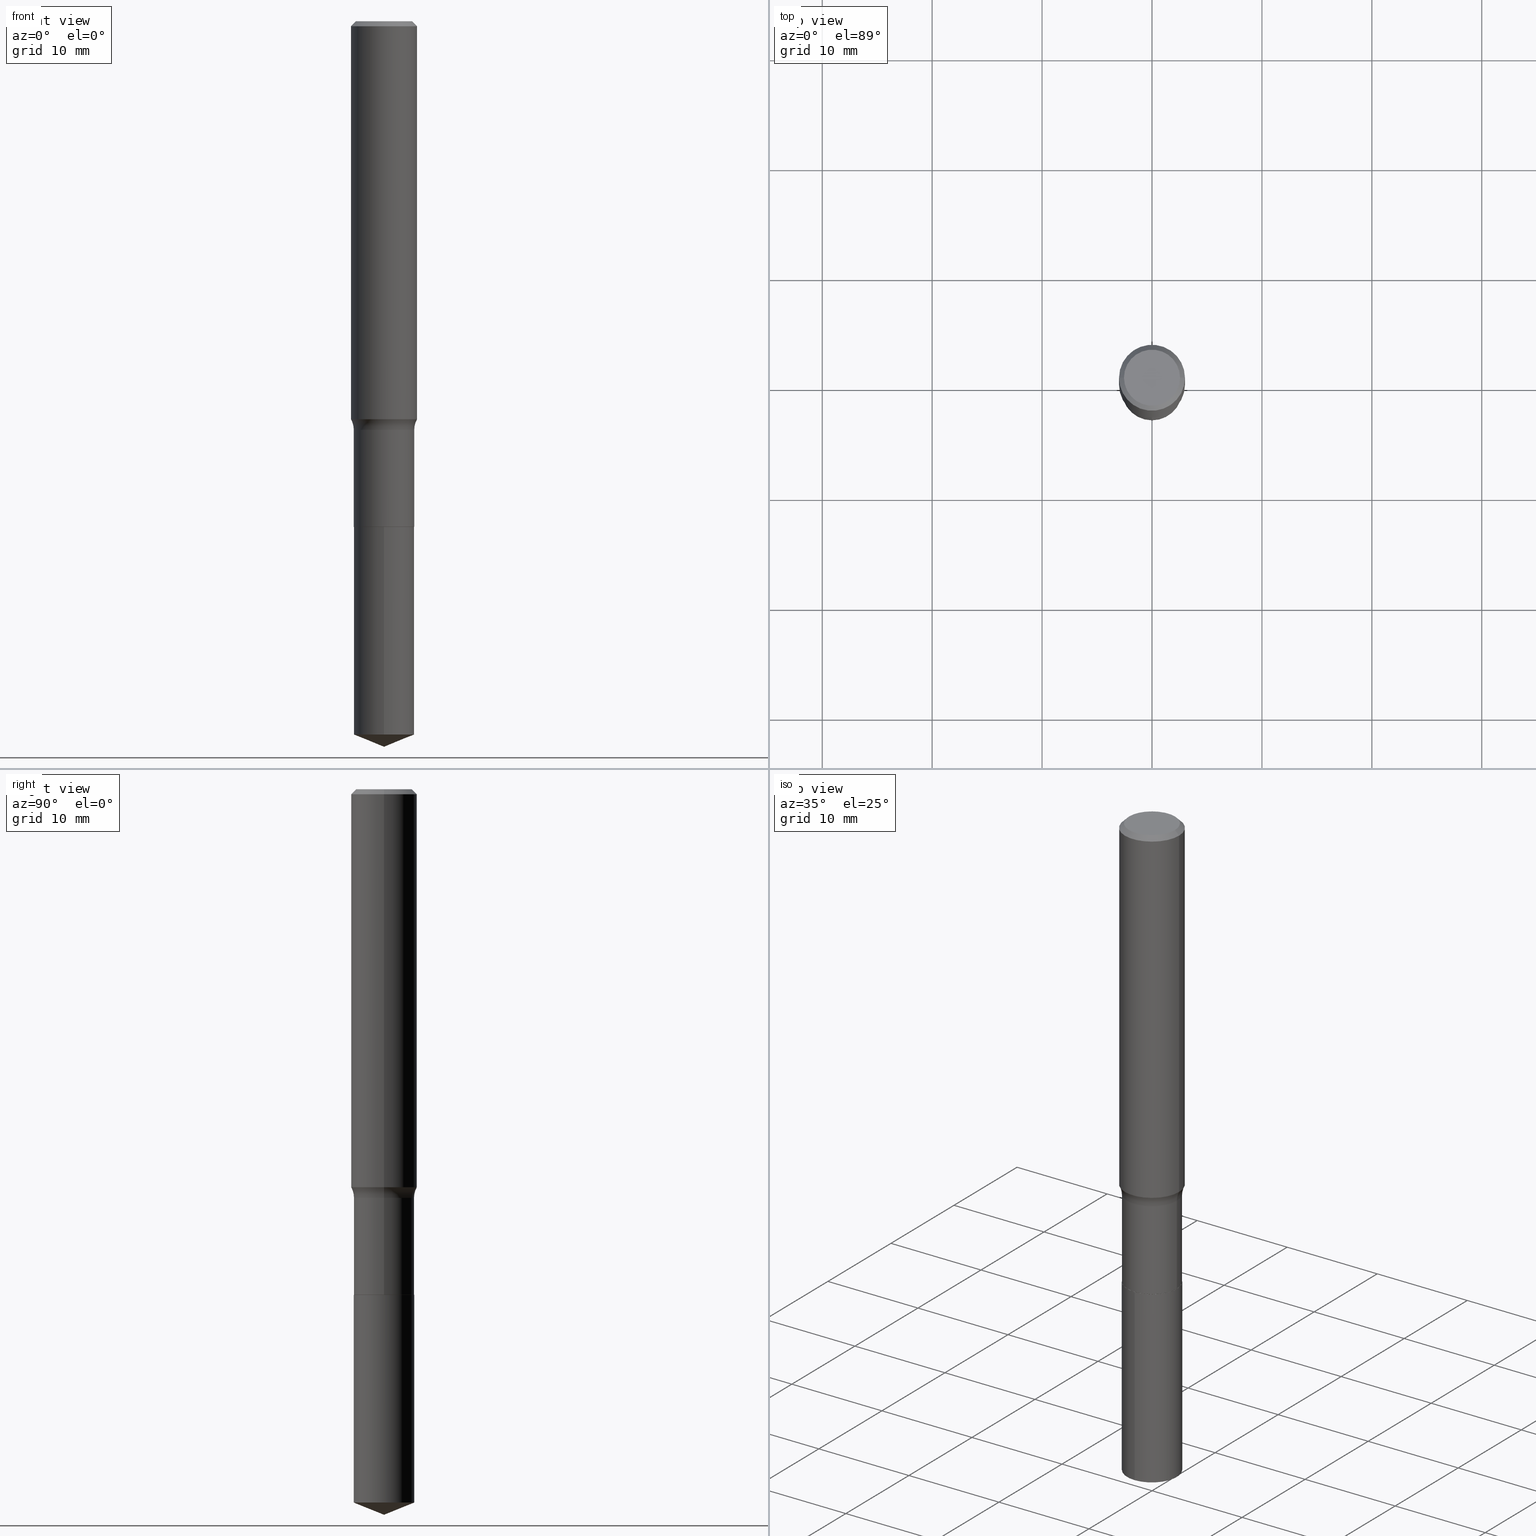
[diagram: canonical four-view strip — front | top / right | iso, engineering-drawing reading convention]
A machine part, canonical four-view strip (front | top / right | iso — engineering-drawing reading convention). The complete STEP part file that produces these views, byte-faithful:
ISO-10303-21;
HEADER;
FILE_DESCRIPTION (( 'STEP AP203' ),
    '1' );
FILE_NAME ('69145.STEP',
    '2024-04-19T17:17:11',
    ( '' ),
    ( '' ),
    'SwSTEP 2.0',
    'SolidWorks 2023',
    '' );
FILE_SCHEMA (( 'CONFIG_CONTROL_DESIGN' ));
ENDSEC;

DATA;
#1 = DIRECTION ( 'NONE',  ( 2.431437355357483089E-29, -3.511575175048929728E-15, -1.000000000000000000 ) ) ;
#2 = CARTESIAN_POINT ( 'NONE',  ( 0.000000000000000000, 0.000000000000000000, 0.000000000000000000 ) ) ;
#3 = ORIENTED_EDGE ( 'NONE', *, *, #57, .F. ) ;
#4 = AXIS2_PLACEMENT_3D ( 'NONE', #154, #72, #447 ) ;
#5 = APPROVAL_PERSON_ORGANIZATION ( #402, #142, #98 ) ;
#6 = DIRECTION ( 'NONE',  ( 1.000000000000000000, -6.982962677686266711E-15, 0.000000000000000000 ) ) ;
#7 = CYLINDRICAL_SURFACE ( 'NONE', #171, 0.1082499999999999851 ) ;
#8 = CARTESIAN_POINT ( 'NONE',  ( 4.427521273598189436E-29, -6.321326963975514491E-15, -1.810499999999999998 ) ) ;
#9 = CC_DESIGN_PERSON_AND_ORGANIZATION_ASSIGNMENT ( #37, #439, ( #395 ) ) ;
#10 = SHAPE_DEFINITION_REPRESENTATION ( #202, #274 ) ;
#11 = DIRECTION ( 'NONE',  ( 1.000000000000000000, -6.982962677686266711E-15, 4.876176775795935232E-29 ) ) ;
#12 = VERTEX_POINT ( 'NONE', #375 ) ;
#13 = COORDINATED_UNIVERSAL_TIME_OFFSET ( 5, 0, .BEHIND. ) ;
#14 = AXIS2_PLACEMENT_3D ( 'NONE', #367, #265, #149 ) ;
#15 = PLANE ( 'NONE',  #194 ) ;
#16 = CYLINDRICAL_SURFACE ( 'NONE', #237, 0.1082499999999999851 ) ;
#17 = AXIS2_PLACEMENT_3D ( 'NONE', #259, #224, #380 ) ;
#18 = CC_DESIGN_SECURITY_CLASSIFICATION ( #433, ( #103 ) ) ;
#19 = ORIENTED_EDGE ( 'NONE', *, *, #147, .T. ) ;
#20 = EDGE_LOOP ( 'NONE', ( #387, #95, #321, #51 ) ) ;
#21 = ORIENTED_EDGE ( 'NONE', *, *, #178, .T. ) ;
#22 = VECTOR ( 'NONE', #100, 39.37007874015748143 ) ;
#23 = CARTESIAN_POINT ( 'NONE',  ( 0.000000000000000000, 0.000000000000000000, 0.000000000000000000 ) ) ;
#24 = ORIENTED_EDGE ( 'NONE', *, *, #302, .T. ) ;
#25 = PRODUCT_DEFINITION ( 'UNKNOWN', '', #103, #424 ) ;
#26 = DATE_AND_TIME ( #248, #393 ) ;
#27 = ORIENTED_EDGE ( 'NONE', *, *, #53, .F. ) ;
#28 = MANIFOLD_SOLID_BREP ( 'Body-Move/Copy2[1]', #262 ) ;
#29 = COORDINATED_UNIVERSAL_TIME_OFFSET ( 5, 0, .BEHIND. ) ;
#30 = DIRECTION ( 'NONE',  ( -2.445468806185136597E-29, 3.491481338843145583E-15, 1.000000000000000000 ) ) ;
#31 = DIRECTION ( 'NONE',  ( 2.445468806185136597E-29, -3.491481338843145583E-15, -1.000000000000000000 ) ) ;
#32 = CARTESIAN_POINT ( 'NONE',  ( -0.1077499999999999986, -5.557462906863427956E-15, -1.810999999999999943 ) ) ;
#33 = AXIS2_PLACEMENT_3D ( 'NONE', #379, #261, #305 ) ;
#34 = AXIS2_PLACEMENT_3D ( 'NONE', #413, #68, #112 ) ;
#35 = VERTEX_POINT ( 'NONE', #446 ) ;
#36 = DIRECTION ( 'NONE',  ( -2.431437355357483089E-29, 3.511575175048930123E-15, 1.000000000000000000 ) ) ;
#37 = PERSON_AND_ORGANIZATION ( #376, #427 ) ;
#38 = ADVANCED_FACE ( 'NONE', ( #406 ), #469, .F. ) ;
#39 = DIRECTION ( 'NONE',  ( -2.445468806185136877E-29, 3.491481338843145188E-15, 1.000000000000000000 ) ) ;
#40 = DIRECTION ( 'NONE',  ( -1.000000000000000000, 6.982962677686266711E-15, 0.000000000000000000 ) ) ;
#41 = DIRECTION ( 'NONE',  ( 0.7071067811865454633, -7.319954787623246579E-15, -0.7071067811865493491 ) ) ;
#42 = EDGE_CURVE ( 'NONE', #472, #70, #296, .T. ) ;
#43 = DIRECTION ( 'NONE',  ( -2.445468806185136877E-29, 3.491481338843145188E-15, 1.000000000000000000 ) ) ;
#44 = DATE_AND_TIME ( #343, #463 ) ;
#45 = VECTOR ( 'NONE', #326, 39.37007874015748854 ) ;
#46 = CARTESIAN_POINT ( 'NONE',  ( 3.578943597851946643E-29, -5.109782939396942894E-15, -1.463499999999999801 ) ) ;
#47 = CIRCLE ( 'NONE', #432, 0.1082499999999999990 ) ;
#48 = CONICAL_SURFACE ( 'NONE', #292, 0.1180999999999999966, 0.7853981633974456145 ) ;
#49 = CARTESIAN_POINT ( 'NONE',  ( -0.1082499999999999851, 7.691625114603083455E-16, -5.324747235200934608E-30 ) ) ;
#50 = DIRECTION ( 'NONE',  ( -2.445468806185136597E-29, 3.491481338843145583E-15, 1.000000000000000000 ) ) ;
#51 = ORIENTED_EDGE ( 'NONE', *, *, #422, .F. ) ;
#52 = PERSON_AND_ORGANIZATION ( #376, #427 ) ;
#53 = EDGE_CURVE ( 'NONE', #90, #360, #67, .T. ) ;
#54 = DIRECTION ( 'NONE',  ( -2.431437355357483089E-29, 3.511575175048930123E-15, 1.000000000000000000 ) ) ;
#55 = AXIS2_PLACEMENT_3D ( 'NONE', #121, #54, #423 ) ;
#56 = APPLICATION_CONTEXT ( 'configuration controlled 3d designs of mechanical parts and assemblies' ) ;
#57 = EDGE_CURVE ( 'NONE', #129, #440, #303, .T. ) ;
#58 = ORIENTED_EDGE ( 'NONE', *, *, #384, .F. ) ;
#59 = AXIS2_PLACEMENT_3D ( 'NONE', #327, #404, #368 ) ;
#60 = ORIENTED_EDGE ( 'NONE', *, *, #42, .F. ) ;
#61 = ORIENTED_EDGE ( 'NONE', *, *, #104, .T. ) ;
#62 = LINE ( 'NONE', #32, #476 ) ;
#63 = ORIENTED_EDGE ( 'NONE', *, *, #438, .T. ) ;
#64 = CLOSED_SHELL ( 'NONE', ( #374, #285, #297, #38, #225, #174, #87, #318, #435, #231, #125, #89 ) ) ;
#65 = VERTEX_POINT ( 'NONE', #443 ) ;
#66 =( NAMED_UNIT ( * ) SI_UNIT ( $, .STERADIAN. ) SOLID_ANGLE_UNIT ( ) );
#67 = LINE ( 'NONE', #181, #389 ) ;
#68 = DIRECTION ( 'NONE',  ( -2.431437355357483089E-29, 3.511575175048930123E-15, 1.000000000000000000 ) ) ;
#69 = PERSON_AND_ORGANIZATION ( #376, #427 ) ;
#70 = VERTEX_POINT ( 'NONE', #304 ) ;
#71 = EDGE_CURVE ( 'NONE', #440, #360, #138, .T. ) ;
#72 = DIRECTION ( 'NONE',  ( -2.431437355357483089E-29, 3.511575175048930123E-15, 1.000000000000000000 ) ) ;
#73 = DIRECTION ( 'NONE',  ( -0.7071067811866199593, 7.493145998870616062E-15, 0.7071067811864750752 ) ) ;
#74 = DIRECTION ( 'NONE',  ( 0.7071067811866199593, -2.468850131083015945E-15, 0.7071067811864750752 ) ) ;
#75 = CIRCLE ( 'NONE', #151, 0.1180999999999999966 ) ;
#76 = ORIENTED_EDGE ( 'NONE', *, *, #414, .T. ) ;
#77 = CARTESIAN_POINT ( 'NONE',  ( 6.236916829026965936E-29, -8.934505311173447321E-15, -2.554664161053343818 ) ) ;
#78 = DIRECTION ( 'NONE',  ( 1.000000000000000000, -6.982962677686269077E-15, 0.000000000000000000 ) ) ;
#79 = CARTESIAN_POINT ( 'NONE',  ( 4.332147990156996744E-31, -6.185159191760670395E-17, -0.01771500000000010913 ) ) ;
#80 = FACE_OUTER_BOUND ( 'NONE', #20, .T. ) ;
#81 = FACE_OUTER_BOUND ( 'NONE', #490, .T. ) ;
#82 = DIRECTION ( 'NONE',  ( 1.000000000000000000, -6.982962677686266711E-15, 4.875668750515085695E-29 ) ) ;
#83 = DIRECTION ( 'NONE',  ( 1.000000000000000000, -6.982962677686267499E-15, 0.000000000000000000 ) ) ;
#84 = ADVANCED_FACE ( 'NONE', ( #256 ), #214, .F. ) ;
#85 = CARTESIAN_POINT ( 'NONE',  ( 0.1003850000000000159, -7.803837484803599345E-16, -2.868857591682071522E-17 ) ) ;
#86 = AXIS2_PLACEMENT_3D ( 'NONE', #457, #184, #6 ) ;
#87 = ADVANCED_FACE ( 'NONE', ( #146 ), #418, .F. ) ;
#88 = FACE_OUTER_BOUND ( 'NONE', #345, .T. ) ;
#89 = ADVANCED_FACE ( 'NONE', ( #80 ), #140, .T. ) ;
#90 = VERTEX_POINT ( 'NONE', #483 ) ;
#91 = ORIENTED_EDGE ( 'NONE', *, *, #473, .F. ) ;
#92 = AXIS2_PLACEMENT_3D ( 'NONE', #254, #144, #417 ) ;
#93 = EDGE_CURVE ( 'NONE', #430, #249, #299, .T. ) ;
#94 = AXIS2_PLACEMENT_3D ( 'NONE', #337, #257, #455 ) ;
#95 = ORIENTED_EDGE ( 'NONE', *, *, #473, .T. ) ;
#96 = ORIENTED_EDGE ( 'NONE', *, *, #422, .T. ) ;
#97 = CARTESIAN_POINT ( 'NONE',  ( 6.369114387261840438E-29, -9.051697060109789399E-15, -2.598399999999999821 ) ) ;
#98 = APPROVAL_ROLE ( '' ) ;
#99 = EDGE_LOOP ( 'NONE', ( #3, #282, #61, #349 ) ) ;
#100 = DIRECTION ( 'NONE',  ( -2.445468806185136877E-29, 3.491481338843145188E-15, 1.000000000000000000 ) ) ;
#101 = AXIS2_PLACEMENT_3D ( 'NONE', #377, #334, #148 ) ;
#102 = CALENDAR_DATE ( 2024, 19, 4 ) ;
#103 = PRODUCT_DEFINITION_FORMATION_WITH_SPECIFIED_SOURCE ( 'ANY', '', #395, .NOT_KNOWN. ) ;
#104 = EDGE_CURVE ( 'NONE', #35, #360, #283, .T. ) ;
#105 = DIRECTION ( 'NONE',  ( -2.445468806185136597E-29, 3.491481338843145583E-15, 1.000000000000000000 ) ) ;
#106 = CARTESIAN_POINT ( 'NONE',  ( -8.938262235057461474E-28, 1.291629041461802011E-13, 36.77167874015748339 ) ) ;
#107 = APPROVAL_ROLE ( '' ) ;
#108 = CARTESIAN_POINT ( 'NONE',  ( -0.1180999999999999966, 7.628363003171413738E-16, -0.01771500000000010913 ) ) ;
#109 = CARTESIAN_POINT ( 'NONE',  ( 0.1082499999999999712, -5.865688649256481550E-15, -1.463499999999999801 ) ) ;
#110 = PERSON_AND_ORGANIZATION_ROLE ( 'creator' ) ;
#111 = VERTEX_POINT ( 'NONE', #290 ) ;
#112 = DIRECTION ( 'NONE',  ( -6.982962677686265922E-15, -1.000000000000000000, 2.523647107311097814E-15 ) ) ;
#113 = CIRCLE ( 'NONE', #4, 0.1082500000000000129 ) ;
#114 = CARTESIAN_POINT ( 'NONE',  ( 3.578943597851946643E-29, -5.109782939396942894E-15, -1.463499999999999801 ) ) ;
#115 = DIRECTION ( 'NONE',  ( -1.000000000000000000, 7.105427357601001859E-15, 0.000000000000000000 ) ) ;
#116 = EDGE_CURVE ( 'NONE', #173, #370, #222, .T. ) ;
#117 = DIRECTION ( 'NONE',  ( 1.000000000000000000, -6.982962677686265922E-15, 4.883557194083112340E-29 ) ) ;
#118 = DIRECTION ( 'NONE',  ( 1.000000000000000000, -6.982962677686266711E-15, 4.876176775795936353E-29 ) ) ;
#119 = DIRECTION ( 'NONE',  ( 1.000000000000000000, -6.982962677686266711E-15, 0.000000000000000000 ) ) ;
#120 = CIRCLE ( 'NONE', #182, 0.07800000000000002764 ) ;
#121 = CARTESIAN_POINT ( 'NONE',  ( 4.428744008001282238E-29, -6.323072704644935995E-15, -1.810999999999999943 ) ) ;
#122 = APPROVAL_STATUS ( 'not_yet_approved' ) ;
#123 = CC_DESIGN_PERSON_AND_ORGANIZATION_ASSIGNMENT ( #332, #258, ( #103 ) ) ;
#124 = PLANE ( 'NONE',  #426 ) ;
#125 = ADVANCED_FACE ( 'NONE', ( #383 ), #15, .F. ) ;
#126 = ADVANCED_FACE ( 'NONE', ( #275 ), #420, .T. ) ;
#127 = ORIENTED_EDGE ( 'NONE', *, *, #147, .F. ) ;
#128 = CARTESIAN_POINT ( 'NONE',  ( 4.332147990156996744E-31, -6.185159191760670395E-17, -0.01771500000000010913 ) ) ;
#129 = VERTEX_POINT ( 'NONE', #466 ) ;
#130 = EDGE_LOOP ( 'NONE', ( #359, #91 ) ) ;
#131 = LOCAL_TIME ( 13, 17, 11.00000000000000000, #448 ) ;
#132 = ORIENTED_EDGE ( 'NONE', *, *, #93, .F. ) ;
#133 = ORIENTED_EDGE ( 'NONE', *, *, #272, .T. ) ;
#134 = CARTESIAN_POINT ( 'NONE',  ( -0.1181000000000000799, 8.391509709326788873E-16, -5.809262341591047988E-30 ) ) ;
#135 = EDGE_CURVE ( 'NONE', #219, #12, #371, .T. ) ;
#136 = APPLICATION_PROTOCOL_DEFINITION ( 'international standard', 'config_control_design', 1994, #167 ) ;
#137 = ORIENTED_EDGE ( 'NONE', *, *, #206, .F. ) ;
#138 = CIRCLE ( 'NONE', #215, 0.07800000000000002764 ) ;
#139 = FACE_OUTER_BOUND ( 'NONE', #289, .T. ) ;
#140 = CONICAL_SURFACE ( 'NONE', #17, 0.1077499999999999986, 0.7853981633975507526 ) ;
#141 = APPROVAL_STATUS ( 'not_yet_approved' ) ;
#142 = APPROVAL ( #211, 'UNSPECIFIED' ) ;
#143 = DIRECTION ( 'NONE',  ( 1.000000000000000000, -6.982962677686263555E-15, 0.000000000000000000 ) ) ;
#144 = DIRECTION ( 'NONE',  ( -2.445468806185136597E-29, 3.491481338843145583E-15, 1.000000000000000000 ) ) ;
#145 = DIRECTION ( 'NONE',  ( -2.445468806185136597E-29, 3.491481338843145583E-15, 1.000000000000000000 ) ) ;
#146 = FACE_OUTER_BOUND ( 'NONE', #477, .T. ) ;
#147 = EDGE_CURVE ( 'NONE', #472, #173, #277, .T. ) ;
#148 = DIRECTION ( 'NONE',  ( -6.982962677686265922E-15, -1.000000000000000000, 2.523647107311097814E-15 ) ) ;
#149 = DIRECTION ( 'NONE',  ( 1.000000000000000000, -6.982962677686265922E-15, 4.883557194083112340E-29 ) ) ;
#150 = DIRECTION ( 'NONE',  ( -6.474490251793169163E-15, -0.9271838545667852038, 0.3746065934159177324 ) ) ;
#151 = AXIS2_PLACEMENT_3D ( 'NONE', #458, #312, #119 ) ;
#152 = VECTOR ( 'NONE', #459, 39.37007874015748143 ) ;
#153 = ORIENTED_EDGE ( 'NONE', *, *, #160, .F. ) ;
#154 = CARTESIAN_POINT ( 'NONE',  ( 6.236916829026965936E-29, -8.934505311173447321E-15, -2.554664161053343818 ) ) ;
#155 = DIRECTION ( 'NONE',  ( -2.445468806185136597E-29, 3.491481338843145583E-15, 1.000000000000000000 ) ) ;
#156 = CARTESIAN_POINT ( 'NONE',  ( -7.559057098594758424E-16, -0.1082500000000089224, -2.554664161053343374 ) ) ;
#157 = EDGE_CURVE ( 'NONE', #437, #111, #313, .T. ) ;
#158 =( GEOMETRIC_REPRESENTATION_CONTEXT ( 3 ) GLOBAL_UNCERTAINTY_ASSIGNED_CONTEXT ( ( #246 ) ) GLOBAL_UNIT_ASSIGNED_CONTEXT ( ( #185, #436, #66 ) ) REPRESENTATION_CONTEXT ( 'NONE', 'WORKASPACE' ) );
#159 = CARTESIAN_POINT ( 'NONE',  ( 7.015701749847187307E-46, -1.001656274515824970E-31, -2.868857591682589212E-17 ) ) ;
#160 = EDGE_CURVE ( 'NONE', #173, #472, #250, .T. ) ;
#161 = LINE ( 'NONE', #97, #475 ) ;
#162 = CARTESIAN_POINT ( 'NONE',  ( 4.428744008001282238E-29, -6.323072704644935995E-15, -1.810999999999999943 ) ) ;
#163 = APPROVAL ( #141, 'UNSPECIFIED' ) ;
#164 = DIRECTION ( 'NONE',  ( 1.000000000000000000, -6.982962677686266711E-15, 4.876176775795935232E-29 ) ) ;
#165 = CIRCLE ( 'NONE', #86, 0.1180999999999999966 ) ;
#166 = APPROVAL_PERSON_ORGANIZATION ( #485, #163, #107 ) ;
#167 = APPLICATION_CONTEXT ( 'configuration controlled 3d designs of mechanical parts and assemblies' ) ;
#168 = ORIENTED_EDGE ( 'NONE', *, *, #233, .F. ) ;
#169 = ORIENTED_EDGE ( 'NONE', *, *, #186, .T. ) ;
#170 = EDGE_LOOP ( 'NONE', ( #153, #487, #24, #60 ) ) ;
#171 = AXIS2_PLACEMENT_3D ( 'NONE', #230, #50, #11 ) ;
#172 = CC_DESIGN_APPROVAL ( #163, ( #103 ) ) ;
#173 = VERTEX_POINT ( 'NONE', #85 ) ;
#174 = ADVANCED_FACE ( 'NONE', ( #192 ), #7, .T. ) ;
#175 = FACE_OUTER_BOUND ( 'NONE', #324, .T. ) ;
#176 = MECHANICAL_CONTEXT ( 'NONE', #167, 'mechanical' ) ;
#177 = ORIENTED_EDGE ( 'NONE', *, *, #233, .T. ) ;
#178 = EDGE_CURVE ( 'NONE', #90, #411, #47, .T. ) ;
#179 = DIRECTION ( 'NONE',  ( 6.588037525764782613E-15, 0.9271838545667876463, 0.3746065934159111821 ) ) ;
#180 = DATE_AND_TIME ( #102, #200 ) ;
#181 = CARTESIAN_POINT ( 'NONE',  ( 0.1082499999999999851, -7.559057098595382610E-16, 5.278461359799099291E-30 ) ) ;
#182 = AXIS2_PLACEMENT_3D ( 'NONE', #266, #293, #115 ) ;
#183 = LENGTH_MEASURE_WITH_UNIT ( LENGTH_MEASURE( 0.02539999999999999897 ), #492 );
#184 = DIRECTION ( 'NONE',  ( -2.445468806185136597E-29, 3.491481338843145583E-15, 1.000000000000000000 ) ) ;
#185 =( CONVERSION_BASED_UNIT ( 'INCH', #183 ) LENGTH_UNIT ( ) NAMED_UNIT ( #480 ) );
#186 = EDGE_CURVE ( 'NONE', #440, #129, #453, .T. ) ;
#187 = ORIENTED_EDGE ( 'NONE', *, *, #364, .F. ) ;
#188 = FACE_OUTER_BOUND ( 'NONE', #392, .T. ) ;
#189 = DIRECTION ( 'NONE',  ( -6.982962677686266711E-15, -1.000000000000000000, 3.491481338843145583E-15 ) ) ;
#190 = SECURITY_CLASSIFICATION_LEVEL ( 'unclassified' ) ;
#191 = CIRCLE ( 'NONE', #59, 0.1082499999999999712 ) ;
#192 = FACE_OUTER_BOUND ( 'NONE', #205, .T. ) ;
#193 = DIRECTION ( 'NONE',  ( 1.000000000000000000, -6.982962677686267499E-15, 0.000000000000000000 ) ) ;
#194 = AXIS2_PLACEMENT_3D ( 'NONE', #271, #461, #311 ) ;
#195 = DIRECTION ( 'NONE',  ( -2.445468806185136597E-29, 3.491481338843145583E-15, 1.000000000000000000 ) ) ;
#196 = AXIS2_PLACEMENT_3D ( 'NONE', #77, #216, #295 ) ;
#197 = EDGE_CURVE ( 'NONE', #70, #370, #75, .T. ) ;
#198 = ORIENTED_EDGE ( 'NONE', *, *, #104, .F. ) ;
#199 = CONICAL_SURFACE ( 'NONE', #291, 0.1180999999999999966, 0.7853981633974456145 ) ;
#200 = LOCAL_TIME ( 13, 17, 11.00000000000000000, #29 ) ;
#201 = ORIENTED_EDGE ( 'NONE', *, *, #93, .T. ) ;
#202 = PRODUCT_DEFINITION_SHAPE ( 'NONE', 'NONE',  #25 ) ;
#203 = ORIENTED_EDGE ( 'NONE', *, *, #197, .T. ) ;
#204 = CC_DESIGN_PERSON_AND_ORGANIZATION_ASSIGNMENT ( #69, #110, ( #103 ) ) ;
#205 = EDGE_LOOP ( 'NONE', ( #243, #96, #319, #198 ) ) ;
#206 = EDGE_CURVE ( 'NONE', #65, #437, #161, .T. ) ;
#207 = EDGE_LOOP ( 'NONE', ( #210, #456, #363 ) ) ;
#208 = VECTOR ( 'NONE', #43, 39.37007874015748143 ) ;
#209 = CIRCLE ( 'NONE', #316, 0.1077499999999999986 ) ;
#210 = ORIENTED_EDGE ( 'NONE', *, *, #279, .F. ) ;
#211 = APPROVAL_STATUS ( 'not_yet_approved' ) ;
#212 = CARTESIAN_POINT ( 'NONE',  ( 0.1862499999999999711, -6.410359738116009596E-15, -1.463499999999999801 ) ) ;
#213 = DIRECTION ( 'NONE',  ( -2.445468806185136597E-29, 3.491481338843145583E-15, 1.000000000000000000 ) ) ;
#214 = PLANE ( 'NONE',  #330 ) ;
#215 = AXIS2_PLACEMENT_3D ( 'NONE', #212, #189, #336 ) ;
#216 = DIRECTION ( 'NONE',  ( -2.431437355357483089E-29, 3.511575175048930123E-15, 1.000000000000000000 ) ) ;
#217 = APPROVAL_PERSON_ORGANIZATION ( #267, #276, #347 ) ;
#218 = CARTESIAN_POINT ( 'NONE',  ( 4.428744008001282238E-29, -6.323072704644935995E-15, -1.810999999999999943 ) ) ;
#219 = VERTEX_POINT ( 'NONE', #365 ) ;
#220 = CYLINDRICAL_SURFACE ( 'NONE', #101, 0.1082499999999999990 ) ;
#221 = DATE_TIME_ROLE ( 'classification_date' ) ;
#222 = LINE ( 'NONE', #378, #486 ) ;
#223 = LINE ( 'NONE', #340, #300 ) ;
#224 = DIRECTION ( 'NONE',  ( -2.445468806185136597E-29, 3.491481338843145583E-15, 1.000000000000000000 ) ) ;
#225 = ADVANCED_FACE ( 'NONE', ( #175 ), #16, .T. ) ;
#226 = FACE_OUTER_BOUND ( 'NONE', #207, .T. ) ;
#227 = COORDINATED_UNIVERSAL_TIME_OFFSET ( 5, 0, .BEHIND. ) ;
#228 = AXIS2_PLACEMENT_3D ( 'NONE', #232, #386, #306 ) ;
#229 = CC_DESIGN_APPROVAL ( #276, ( #433 ) ) ;
#230 = CARTESIAN_POINT ( 'NONE',  ( 0.000000000000000000, 0.000000000000000000, 0.000000000000000000 ) ) ;
#231 = ADVANCED_FACE ( 'NONE', ( #88 ), #124, .F. ) ;
#232 = CARTESIAN_POINT ( 'NONE',  ( 3.486158196102022756E-29, -4.977309976377515636E-15, -1.425558235412674124 ) ) ;
#233 = EDGE_CURVE ( 'NONE', #129, #70, #314, .T. ) ;
#234 = CARTESIAN_POINT ( 'NONE',  ( 4.427521273598189436E-29, -6.321326963975514491E-15, -1.810499999999999998 ) ) ;
#235 = ADVANCED_FACE ( 'NONE', ( #273 ), #220, .T. ) ;
#236 = DIRECTION ( 'NONE',  ( 2.438088387897960049E-29, -3.491481338843145188E-15, -1.000000000000000000 ) ) ;
#237 = AXIS2_PLACEMENT_3D ( 'NONE', #251, #465, #164 ) ;
#238 = FACE_OUTER_BOUND ( 'NONE', #467, .T. ) ;
#239 = ORIENTED_EDGE ( 'NONE', *, *, #116, .F. ) ;
#240 = DIRECTION ( 'NONE',  ( 2.445468806185136597E-29, -3.491481338843145583E-15, -1.000000000000000000 ) ) ;
#241 = AXIS2_PLACEMENT_3D ( 'NONE', #159, #269, #341 ) ;
#242 = CIRCLE ( 'NONE', #372, 0.1082499999999999990 ) ;
#243 = ORIENTED_EDGE ( 'NONE', *, *, #260, .F. ) ;
#244 = ORIENTED_EDGE ( 'NONE', *, *, #408, .F. ) ;
#245 = PERSON_AND_ORGANIZATION ( #376, #427 ) ;
#246 = UNCERTAINTY_MEASURE_WITH_UNIT (LENGTH_MEASURE( 1.000000000000000082E-05 ), #185, 'distance_accuracy_value', 'NONE');
#247 = ORIENTED_EDGE ( 'NONE', *, *, #302, .F. ) ;
#248 = CALENDAR_DATE ( 2024, 19, 4 ) ;
#249 = VERTEX_POINT ( 'NONE', #382 ) ;
#250 = CIRCLE ( 'NONE', #241, 0.1003850000000000159 ) ;
#251 = CARTESIAN_POINT ( 'NONE',  ( 0.000000000000000000, 0.000000000000000000, 0.000000000000000000 ) ) ;
#252 = DIRECTION ( 'NONE',  ( -1.000000000000000000, 6.982962677686266711E-15, 0.000000000000000000 ) ) ;
#253 = CARTESIAN_POINT ( 'NONE',  ( -7.559057098594939862E-16, -0.1082500000000063134, -1.810999999999999721 ) ) ;
#254 = CARTESIAN_POINT ( 'NONE',  ( 4.428744008001282238E-29, -6.323072704644935995E-15, -1.810999999999999943 ) ) ;
#255 = DATE_AND_TIME ( #369, #131 ) ;
#256 = FACE_OUTER_BOUND ( 'NONE', #434, .T. ) ;
#257 = DIRECTION ( 'NONE',  ( -2.431437355357483089E-29, 3.511575175048930123E-15, 1.000000000000000000 ) ) ;
#258 = PERSON_AND_ORGANIZATION_ROLE ( 'design_supplier' ) ;
#259 = CARTESIAN_POINT ( 'NONE',  ( 4.428744008001282238E-29, -6.323072704644935995E-15, -1.810999999999999943 ) ) ;
#260 = EDGE_CURVE ( 'NONE', #411, #35, #298, .T. ) ;
#261 = DIRECTION ( 'NONE',  ( -2.445468806185136597E-29, 3.491481338843145583E-15, 1.000000000000000000 ) ) ;
#262 = CLOSED_SHELL ( 'NONE', ( #126, #322, #268, #235, #84 ) ) ;
#263 = ORIENTED_EDGE ( 'NONE', *, *, #385, .F. ) ;
#264 = LINE ( 'NONE', #342, #152 ) ;
#265 = DIRECTION ( 'NONE',  ( -2.445468806185136597E-29, 3.491481338843145583E-15, 1.000000000000000000 ) ) ;
#266 = CARTESIAN_POINT ( 'NONE',  ( -0.1862499999999999711, -3.786397094043756898E-15, -1.463499999999999801 ) ) ;
#267 = PERSON_AND_ORGANIZATION ( #376, #427 ) ;
#268 = ADVANCED_FACE ( 'NONE', ( #81 ), #441, .T. ) ;
#269 = DIRECTION ( 'NONE',  ( -2.445468806185136597E-29, 3.491481338843145583E-15, 1.000000000000000000 ) ) ;
#270 = APPROVAL_DATE_TIME ( #451, #276 ) ;
#271 = CARTESIAN_POINT ( 'NONE',  ( 4.428744008001282238E-29, -6.323072704644935995E-15, -1.810999999999999943 ) ) ;
#272 = EDGE_CURVE ( 'NONE', #430, #437, #113, .T. ) ;
#273 = FACE_OUTER_BOUND ( 'NONE', #421, .T. ) ;
#274 = ADVANCED_BREP_SHAPE_REPRESENTATION ( '69145', ( #28, #358, #361 ), #158 ) ;
#275 = FACE_OUTER_BOUND ( 'NONE', #294, .T. ) ;
#276 = APPROVAL ( #122, 'UNSPECIFIED' ) ;
#277 = CIRCLE ( 'NONE', #346, 0.1003850000000000159 ) ;
#278 = CARTESIAN_POINT ( 'NONE',  ( 7.691625114603526203E-16, 0.1082499999999936846, -1.811000000000000165 ) ) ;
#279 = EDGE_CURVE ( 'NONE', #65, #430, #223, .T. ) ;
#280 = ORIENTED_EDGE ( 'NONE', *, *, #57, .T. ) ;
#281 = CC_DESIGN_DATE_AND_TIME_ASSIGNMENT ( #180, #328, ( #25 ) ) ;
#282 = ORIENTED_EDGE ( 'NONE', *, *, #364, .T. ) ;
#283 = CIRCLE ( 'NONE', #315, 0.1082499999999999712 ) ;
#284 = ORIENTED_EDGE ( 'NONE', *, *, #414, .F. ) ;
#285 = ADVANCED_FACE ( 'NONE', ( #301 ), #199, .T. ) ;
#286 = DIRECTION ( 'NONE',  ( 1.000000000000000000, -6.982962677686263555E-15, 0.000000000000000000 ) ) ;
#287 = EDGE_LOOP ( 'NONE', ( #394, #63, #350, #429 ) ) ;
#288 = DIRECTION ( 'NONE',  ( 0.000000000000000000, 0.000000000000000000, 1.000000000000000000 ) ) ;
#289 = EDGE_LOOP ( 'NONE', ( #168, #280, #76, #474 ) ) ;
#290 = CARTESIAN_POINT ( 'NONE',  ( 7.691625114603707641E-16, 0.1082499999999936846, -1.811000000000000165 ) ) ;
#291 = AXIS2_PLACEMENT_3D ( 'NONE', #79, #31, #40 ) ;
#292 = AXIS2_PLACEMENT_3D ( 'NONE', #128, #240, #252 ) ;
#293 = DIRECTION ( 'NONE',  ( 7.105427357601001859E-15, 1.000000000000000000, -3.491481338843145583E-15 ) ) ;
#294 = EDGE_LOOP ( 'NONE', ( #133, #400, #58, #132 ) ) ;
#295 = DIRECTION ( 'NONE',  ( -6.982962677686265922E-15, -1.000000000000000000, 5.047294214622194840E-15 ) ) ;
#296 = LINE ( 'NONE', #108, #45 ) ;
#297 = ADVANCED_FACE ( 'NONE', ( #188 ), #373, .T. ) ;
#298 = LINE ( 'NONE', #49, #208 ) ;
#299 = LINE ( 'NONE', #253, #381 ) ;
#300 = VECTOR ( 'NONE', #150, 39.37007874015748143 ) ;
#301 = FACE_OUTER_BOUND ( 'NONE', #170, .T. ) ;
#302 = EDGE_CURVE ( 'NONE', #370, #70, #165, .T. ) ;
#303 = CIRCLE ( 'NONE', #401, 0.1181000000000001632 ) ;
#304 = CARTESIAN_POINT ( 'NONE',  ( -0.1180999999999999966, -1.680429813214881537E-15, -0.01771500000000010913 ) ) ;
#305 = DIRECTION ( 'NONE',  ( 1.000000000000000000, -6.982962677686266711E-15, 4.876176775795936353E-29 ) ) ;
#306 = DIRECTION ( 'NONE',  ( 1.000000000000000000, -6.982962677686263555E-15, 0.000000000000000000 ) ) ;
#307 = DIRECTION ( 'NONE',  ( -2.445468806185136597E-29, 3.491481338843145583E-15, 1.000000000000000000 ) ) ;
#308 = PERSON_AND_ORGANIZATION_ROLE ( 'classification_officer' ) ;
#309 = CONICAL_SURFACE ( 'NONE', #92, 0.1077499999999999986, 0.7853981633975507526 ) ;
#310 = CIRCLE ( 'NONE', #94, 0.1082499999999999990 ) ;
#311 = DIRECTION ( 'NONE',  ( 1.000000000000000000, -6.982962677686265922E-15, 4.876176775795935793E-29 ) ) ;
#312 = DIRECTION ( 'NONE',  ( -2.445468806185136597E-29, 3.491481338843145583E-15, 1.000000000000000000 ) ) ;
#313 = LINE ( 'NONE', #278, #470 ) ;
#314 = LINE ( 'NONE', #134, #22 ) ;
#315 = AXIS2_PLACEMENT_3D ( 'NONE', #114, #415, #78 ) ;
#316 = AXIS2_PLACEMENT_3D ( 'NONE', #218, #145, #286 ) ;
#317 = ORIENTED_EDGE ( 'NONE', *, *, #408, .T. ) ;
#318 = ADVANCED_FACE ( 'NONE', ( #139 ), #491, .T. ) ;
#319 = ORIENTED_EDGE ( 'NONE', *, *, #53, .T. ) ;
#320 = AXIS2_PLACEMENT_3D ( 'NONE', #416, #36, #450 ) ;
#321 = ORIENTED_EDGE ( 'NONE', *, *, #431, .T. ) ;
#322 = ADVANCED_FACE ( 'NONE', ( #226 ), #353, .T. ) ;
#323 = AXIS2_PLACEMENT_3D ( 'NONE', #46, #30, #117 ) ;
#324 = EDGE_LOOP ( 'NONE', ( #21, #403, #471, #27 ) ) ;
#325 = CC_DESIGN_DATE_AND_TIME_ASSIGNMENT ( #44, #221, ( #433 ) ) ;
#326 = DIRECTION ( 'NONE',  ( -0.7071067811865454633, 2.468850131082235761E-15, -0.7071067811865493491 ) ) ;
#327 = CARTESIAN_POINT ( 'NONE',  ( 3.578943597851946643E-29, -5.109782939396942894E-15, -1.463499999999999801 ) ) ;
#328 = DATE_TIME_ROLE ( 'creation_date' ) ;
#329 = CARTESIAN_POINT ( 'NONE',  ( 3.486158196102022756E-29, -4.977309976377515636E-15, -1.425558235412674124 ) ) ;
#330 = AXIS2_PLACEMENT_3D ( 'NONE', #333, #1, #449 ) ;
#331 = DIRECTION ( 'NONE',  ( -6.982962677686265922E-15, -1.000000000000000000, 3.498761904101862268E-15 ) ) ;
#332 = PERSON_AND_ORGANIZATION ( #376, #427 ) ;
#333 = CARTESIAN_POINT ( 'NONE',  ( 4.428744008001282238E-29, -6.323072704644935995E-15, -1.810999999999999943 ) ) ;
#334 = DIRECTION ( 'NONE',  ( -2.431437355357483089E-29, 3.511575175048930123E-15, 1.000000000000000000 ) ) ;
#335 = DIRECTION ( 'NONE',  ( 1.000000000000000000, 0.000000000000000000, 0.000000000000000000 ) ) ;
#336 = DIRECTION ( 'NONE',  ( 1.000000000000000000, -6.982962677686268288E-15, 0.000000000000000000 ) ) ;
#337 = CARTESIAN_POINT ( 'NONE',  ( 4.428744008001282238E-29, -6.323072704644935995E-15, -1.810999999999999943 ) ) ;
#338 = ORIENTED_EDGE ( 'NONE', *, *, #385, .T. ) ;
#339 = CC_DESIGN_PERSON_AND_ORGANIZATION_ASSIGNMENT ( #52, #308, ( #433 ) ) ;
#340 = CARTESIAN_POINT ( 'NONE',  ( 6.317846824160882656E-29, -9.124476934847141705E-15, -2.598399999999999821 ) ) ;
#341 = DIRECTION ( 'NONE',  ( 1.000000000000000000, -6.982962677686266711E-15, 4.875668750515085695E-29 ) ) ;
#342 = CARTESIAN_POINT ( 'NONE',  ( 0.1181000000000000799, -8.246878922347486570E-16, 5.758764772215004644E-30 ) ) ;
#343 = CALENDAR_DATE ( 2024, 19, 4 ) ;
#344 = ORIENTED_EDGE ( 'NONE', *, *, #357, .T. ) ;
#345 = EDGE_LOOP ( 'NONE', ( #19, #390 ) ) ;
#346 = AXIS2_PLACEMENT_3D ( 'NONE', #464, #348, #82 ) ;
#347 = APPROVAL_ROLE ( '' ) ;
#348 = DIRECTION ( 'NONE',  ( -2.445468806185136597E-29, 3.491481338843145583E-15, 1.000000000000000000 ) ) ;
#349 = ORIENTED_EDGE ( 'NONE', *, *, #71, .F. ) ;
#350 = ORIENTED_EDGE ( 'NONE', *, *, #178, .F. ) ;
#351 = AXIS2_PLACEMENT_3D ( 'NONE', #106, #488, #331 ) ;
#352 = CARTESIAN_POINT ( 'NONE',  ( 3.507850874923593654E-46, -5.008281372579124849E-32, -1.434428795841294606E-17 ) ) ;
#353 = CONICAL_SURFACE ( 'NONE', #351, 97.44436430772745439, 1.186823891356141525 ) ;
#354 = CC_DESIGN_APPROVAL ( #142, ( #25 ) ) ;
#355 = ORIENTED_EDGE ( 'NONE', *, *, #71, .T. ) ;
#356 = PRODUCT_RELATED_PRODUCT_CATEGORY ( 'detail', '', ( #395 ) ) ;
#357 = EDGE_CURVE ( 'NONE', #360, #35, #191, .T. ) ;
#358 = MANIFOLD_SOLID_BREP ( 'Body-Move/Copy2[2]', #64 ) ;
#359 = ORIENTED_EDGE ( 'NONE', *, *, #135, .F. ) ;
#360 = VERTEX_POINT ( 'NONE', #109 ) ;
#361 = AXIS2_PLACEMENT_3D ( 'NONE', #23, #288, #335 ) ;
#362 = ORIENTED_EDGE ( 'NONE', *, *, #42, .T. ) ;
#363 = ORIENTED_EDGE ( 'NONE', *, *, #272, .F. ) ;
#364 = EDGE_CURVE ( 'NONE', #129, #35, #120, .T. ) ;
#365 = CARTESIAN_POINT ( 'NONE',  ( 0.1077499999999999986, -7.075486933165630854E-15, -1.810999999999999943 ) ) ;
#366 = APPROVAL_DATE_TIME ( #26, #142 ) ;
#367 = CARTESIAN_POINT ( 'NONE',  ( 3.578943597851946643E-29, -5.109782939396942894E-15, -1.463499999999999801 ) ) ;
#368 = DIRECTION ( 'NONE',  ( 1.000000000000000000, -6.982962677686269077E-15, 0.000000000000000000 ) ) ;
#369 = CALENDAR_DATE ( 2024, 19, 4 ) ;
#370 = VERTEX_POINT ( 'NONE', #484 ) ;
#371 = CIRCLE ( 'NONE', #388, 0.1077499999999999986 ) ;
#372 = AXIS2_PLACEMENT_3D ( 'NONE', #8, #307, #193 ) ;
#373 = CYLINDRICAL_SURFACE ( 'NONE', #33, 0.1181000000000000799 ) ;
#374 = ADVANCED_FACE ( 'NONE', ( #444 ), #309, .T. ) ;
#375 = CARTESIAN_POINT ( 'NONE',  ( -0.1077499999999999986, -5.554813679689317544E-15, -1.810999999999999943 ) ) ;
#376 = PERSON ( 'UNSPECIFIED', 'UNSPECIFIED', 'UNSPECIFIED', ('UNSPECIFIED'), ('UNSPECIFIED'), ('UNSPECIFIED') ) ;
#377 = CARTESIAN_POINT ( 'NONE',  ( 4.428744008001282238E-29, -6.323072704644935995E-15, -1.810999999999999943 ) ) ;
#378 = CARTESIAN_POINT ( 'NONE',  ( 0.1180999999999999966, -8.720764054544245267E-16, -0.01771500000000010913 ) ) ;
#379 = CARTESIAN_POINT ( 'NONE',  ( 0.000000000000000000, 0.000000000000000000, 0.000000000000000000 ) ) ;
#380 = DIRECTION ( 'NONE',  ( 1.000000000000000000, -6.982962677686263555E-15, 0.000000000000000000 ) ) ;
#381 = VECTOR ( 'NONE', #452, 39.37007874015748143 ) ;
#382 = CARTESIAN_POINT ( 'NONE',  ( -7.559057098594939862E-16, -0.1082500000000063134, -1.810999999999999721 ) ) ;
#383 = FACE_OUTER_BOUND ( 'NONE', #130, .T. ) ;
#384 = EDGE_CURVE ( 'NONE', #249, #111, #462, .T. ) ;
#385 = EDGE_CURVE ( 'NONE', #437, #430, #412, .T. ) ;
#386 = DIRECTION ( 'NONE',  ( -2.445468806185136597E-29, 3.491481338843145583E-15, 1.000000000000000000 ) ) ;
#387 = ORIENTED_EDGE ( 'NONE', *, *, #438, .F. ) ;
#388 = AXIS2_PLACEMENT_3D ( 'NONE', #162, #195, #391 ) ;
#389 = VECTOR ( 'NONE', #39, 39.37007874015748143 ) ;
#390 = ORIENTED_EDGE ( 'NONE', *, *, #160, .T. ) ;
#391 = DIRECTION ( 'NONE',  ( 1.000000000000000000, -6.982962677686263555E-15, 0.000000000000000000 ) ) ;
#392 = EDGE_LOOP ( 'NONE', ( #169, #177, #247, #284 ) ) ;
#393 = LOCAL_TIME ( 13, 17, 11.00000000000000000, #482 ) ;
#394 = ORIENTED_EDGE ( 'NONE', *, *, #135, .T. ) ;
#395 = PRODUCT ( '69145', '69145', '', ( #176 ) ) ;
#396 = ORIENTED_EDGE ( 'NONE', *, *, #186, .F. ) ;
#397 = PERSON_AND_ORGANIZATION_ROLE ( 'creator' ) ;
#398 = ORIENTED_EDGE ( 'NONE', *, *, #279, .T. ) ;
#399 = AXIS2_PLACEMENT_3D ( 'NONE', #2, #213, #118 ) ;
#400 = ORIENTED_EDGE ( 'NONE', *, *, #157, .T. ) ;
#401 = AXIS2_PLACEMENT_3D ( 'NONE', #329, #105, #143 ) ;
#402 = PERSON_AND_ORGANIZATION ( #376, #427 ) ;
#403 = ORIENTED_EDGE ( 'NONE', *, *, #260, .T. ) ;
#404 = DIRECTION ( 'NONE',  ( -2.445468806185136597E-29, 3.491481338843145583E-15, 1.000000000000000000 ) ) ;
#405 = APPROVAL_DATE_TIME ( #255, #163 ) ;
#406 = FACE_OUTER_BOUND ( 'NONE', #99, .T. ) ;
#407 = CARTESIAN_POINT ( 'NONE',  ( -0.1082499999999999990, -4.946392440225920150E-15, -1.810499999999999998 ) ) ;
#408 = EDGE_CURVE ( 'NONE', #111, #249, #310, .T. ) ;
#409 = CARTESIAN_POINT ( 'NONE',  ( 7.691625114603706655E-16, 0.1082499999999910756, -2.554664161053344262 ) ) ;
#410 = LINE ( 'NONE', #419, #454 ) ;
#411 = VERTEX_POINT ( 'NONE', #407 ) ;
#412 = CIRCLE ( 'NONE', #196, 0.1082500000000000129 ) ;
#413 = CARTESIAN_POINT ( 'NONE',  ( 4.428744008001282238E-29, -6.323072704644935995E-15, -1.810999999999999943 ) ) ;
#414 = EDGE_CURVE ( 'NONE', #440, #370, #264, .T. ) ;
#415 = DIRECTION ( 'NONE',  ( -2.445468806185136597E-29, 3.491481338843145583E-15, 1.000000000000000000 ) ) ;
#416 = CARTESIAN_POINT ( 'NONE',  ( -8.938262235057461474E-28, 1.291629041461802011E-13, 36.77167874015748339 ) ) ;
#417 = DIRECTION ( 'NONE',  ( 1.000000000000000000, -6.982962677686263555E-15, 0.000000000000000000 ) ) ;
#418 = TOROIDAL_SURFACE ( 'NONE', #14, 0.1862499999999999711, 0.07800000000000002764 ) ;
#419 = CARTESIAN_POINT ( 'NONE',  ( 0.1077499999999999986, -7.075486933165630854E-15, -1.810999999999999943 ) ) ;
#420 = CYLINDRICAL_SURFACE ( 'NONE', #55, 0.1082499999999999990 ) ;
#421 = EDGE_LOOP ( 'NONE', ( #479, #338, #201, #244 ) ) ;
#422 = EDGE_CURVE ( 'NONE', #411, #90, #242, .T. ) ;
#423 = DIRECTION ( 'NONE',  ( -6.982962677686265922E-15, -1.000000000000000000, 2.523647107311097814E-15 ) ) ;
#424 = DESIGN_CONTEXT ( 'detailed design', #56, 'design' ) ;
#425 = ORIENTED_EDGE ( 'NONE', *, *, #384, .T. ) ;
#426 = AXIS2_PLACEMENT_3D ( 'NONE', #352, #236, #481 ) ;
#427 = ORGANIZATION ( 'UNSPECIFIED', 'UNSPECIFIED', '' ) ;
#428 = CC_DESIGN_PERSON_AND_ORGANIZATION_ASSIGNMENT ( #245, #397, ( #25 ) ) ;
#429 = ORIENTED_EDGE ( 'NONE', *, *, #431, .F. ) ;
#430 = VERTEX_POINT ( 'NONE', #156 ) ;
#431 = EDGE_CURVE ( 'NONE', #219, #90, #410, .T. ) ;
#432 = AXIS2_PLACEMENT_3D ( 'NONE', #234, #155, #83 ) ;
#433 = SECURITY_CLASSIFICATION ( '', '', #190 ) ;
#434 = EDGE_LOOP ( 'NONE', ( #425, #317 ) ) ;
#435 = ADVANCED_FACE ( 'NONE', ( #238 ), #48, .T. ) ;
#436 =( NAMED_UNIT ( * ) PLANE_ANGLE_UNIT ( ) SI_UNIT ( $, .RADIAN. ) );
#437 = VERTEX_POINT ( 'NONE', #409 ) ;
#438 = EDGE_CURVE ( 'NONE', #12, #411, #62, .T. ) ;
#439 = PERSON_AND_ORGANIZATION_ROLE ( 'design_owner' ) ;
#440 = VERTEX_POINT ( 'NONE', #489 ) ;
#441 = CONICAL_SURFACE ( 'NONE', #320, 97.44436430772745439, 1.186823891356141525 ) ;
#442 = LOCAL_TIME ( 13, 17, 11.00000000000000000, #13 ) ;
#443 = CARTESIAN_POINT ( 'NONE',  ( 6.317846824160882656E-29, -9.124476934847141705E-15, -2.598399999999999821 ) ) ;
#444 = FACE_OUTER_BOUND ( 'NONE', #287, .T. ) ;
#445 = APPLICATION_PROTOCOL_DEFINITION ( 'international standard', 'config_control_design', 1994, #56 ) ;
#446 = CARTESIAN_POINT ( 'NONE',  ( -0.1082499999999999712, -4.946392440225920150E-15, -1.463499999999999801 ) ) ;
#447 = DIRECTION ( 'NONE',  ( -6.982962677686265922E-15, -1.000000000000000000, 5.047294214622194840E-15 ) ) ;
#448 = COORDINATED_UNIVERSAL_TIME_OFFSET ( 5, 0, .BEHIND. ) ;
#449 = DIRECTION ( 'NONE',  ( 6.982962677686265922E-15, 1.000000000000000000, -3.511575175048929728E-15 ) ) ;
#450 = DIRECTION ( 'NONE',  ( -6.982962677686265922E-15, -1.000000000000000000, 3.498761904101862268E-15 ) ) ;
#451 = DATE_AND_TIME ( #460, #442 ) ;
#452 = DIRECTION ( 'NONE',  ( -2.431437355357483089E-29, 3.511575175048929728E-15, 1.000000000000000000 ) ) ;
#453 = CIRCLE ( 'NONE', #228, 0.1181000000000001632 ) ;
#454 = VECTOR ( 'NONE', #74, 39.37007874015748143 ) ;
#455 = DIRECTION ( 'NONE',  ( -6.982962677686265922E-15, -1.000000000000000000, 2.523647107311097814E-15 ) ) ;
#456 = ORIENTED_EDGE ( 'NONE', *, *, #206, .T. ) ;
#457 = CARTESIAN_POINT ( 'NONE',  ( 4.332147990156996744E-31, -6.185159191760670395E-17, -0.01771500000000010913 ) ) ;
#458 = CARTESIAN_POINT ( 'NONE',  ( 4.332147990156996744E-31, -6.185159191760670395E-17, -0.01771500000000010913 ) ) ;
#459 = DIRECTION ( 'NONE',  ( -2.445468806185136877E-29, 3.491481338843145188E-15, 1.000000000000000000 ) ) ;
#460 = CALENDAR_DATE ( 2024, 19, 4 ) ;
#461 = DIRECTION ( 'NONE',  ( -2.438088387897960049E-29, 3.491481338843145188E-15, 1.000000000000000000 ) ) ;
#462 = CIRCLE ( 'NONE', #34, 0.1082499999999999990 ) ;
#463 = LOCAL_TIME ( 13, 17, 11.00000000000000000, #227 ) ;
#464 = CARTESIAN_POINT ( 'NONE',  ( 7.015701749847187307E-46, -1.001656274515824970E-31, -2.868857591682589212E-17 ) ) ;
#465 = DIRECTION ( 'NONE',  ( -2.445468806185136597E-29, 3.491481338843145583E-15, 1.000000000000000000 ) ) ;
#466 = CARTESIAN_POINT ( 'NONE',  ( -0.1181000000000001909, -4.138159005444835862E-15, -1.425558235412674124 ) ) ;
#467 = EDGE_LOOP ( 'NONE', ( #239, #127, #362, #203 ) ) ;
#468 = DIRECTION ( 'NONE',  ( -2.431437355357483089E-29, 3.511575175048929728E-15, 1.000000000000000000 ) ) ;
#469 = TOROIDAL_SURFACE ( 'NONE', #323, 0.1862499999999999711, 0.07800000000000002764 ) ;
#470 = VECTOR ( 'NONE', #468, 39.37007874015748143 ) ;
#471 = ORIENTED_EDGE ( 'NONE', *, *, #357, .F. ) ;
#472 = VERTEX_POINT ( 'NONE', #478 ) ;
#473 = EDGE_CURVE ( 'NONE', #12, #219, #209, .T. ) ;
#474 = ORIENTED_EDGE ( 'NONE', *, *, #197, .F. ) ;
#475 = VECTOR ( 'NONE', #179, 39.37007874015748143 ) ;
#476 = VECTOR ( 'NONE', #73, 39.37007874015748143 ) ;
#477 = EDGE_LOOP ( 'NONE', ( #187, #396, #355, #344 ) ) ;
#478 = CARTESIAN_POINT ( 'NONE',  ( -0.1003850000000000159, 7.319105043583386689E-16, -2.868857591683090262E-17 ) ) ;
#479 = ORIENTED_EDGE ( 'NONE', *, *, #157, .F. ) ;
#480 = DIMENSIONAL_EXPONENTS ( 1.000000000000000000, 0.000000000000000000, 0.000000000000000000, 0.000000000000000000, 0.000000000000000000, 0.000000000000000000, 0.000000000000000000 ) ;
#481 = DIRECTION ( 'NONE',  ( -1.000000000000000000, 6.982962677686265922E-15, -4.876176775795935793E-29 ) ) ;
#482 = COORDINATED_UNIVERSAL_TIME_OFFSET ( 5, 0, .BEHIND. ) ;
#483 = CARTESIAN_POINT ( 'NONE',  ( 0.1082499999999999990, -7.077232673835053147E-15, -1.810499999999999998 ) ) ;
#484 = CARTESIAN_POINT ( 'NONE',  ( 0.1180999999999999966, -8.865394841523547570E-16, -0.01771500000000010913 ) ) ;
#485 = PERSON_AND_ORGANIZATION ( #376, #427 ) ;
#486 = VECTOR ( 'NONE', #41, 39.37007874015748854 ) ;
#487 = ORIENTED_EDGE ( 'NONE', *, *, #116, .T. ) ;
#488 = DIRECTION ( 'NONE',  ( -2.431437355357483089E-29, 3.511575175048930123E-15, 1.000000000000000000 ) ) ;
#489 = CARTESIAN_POINT ( 'NONE',  ( 0.1181000000000001909, -5.801997868612264688E-15, -1.425558235412674124 ) ) ;
#490 = EDGE_LOOP ( 'NONE', ( #137, #398, #263 ) ) ;
#491 = CYLINDRICAL_SURFACE ( 'NONE', #399, 0.1181000000000000799 ) ;
#492 =( LENGTH_UNIT ( ) NAMED_UNIT ( * ) SI_UNIT ( $, .METRE. ) );
ENDSEC;
END-ISO-10303-21;
